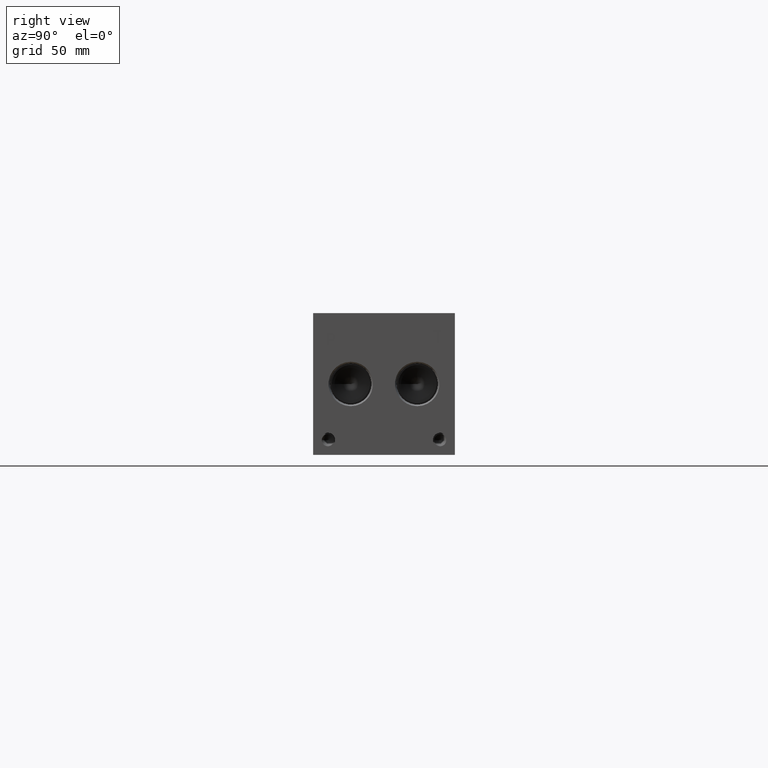
[diagram: clean part render]
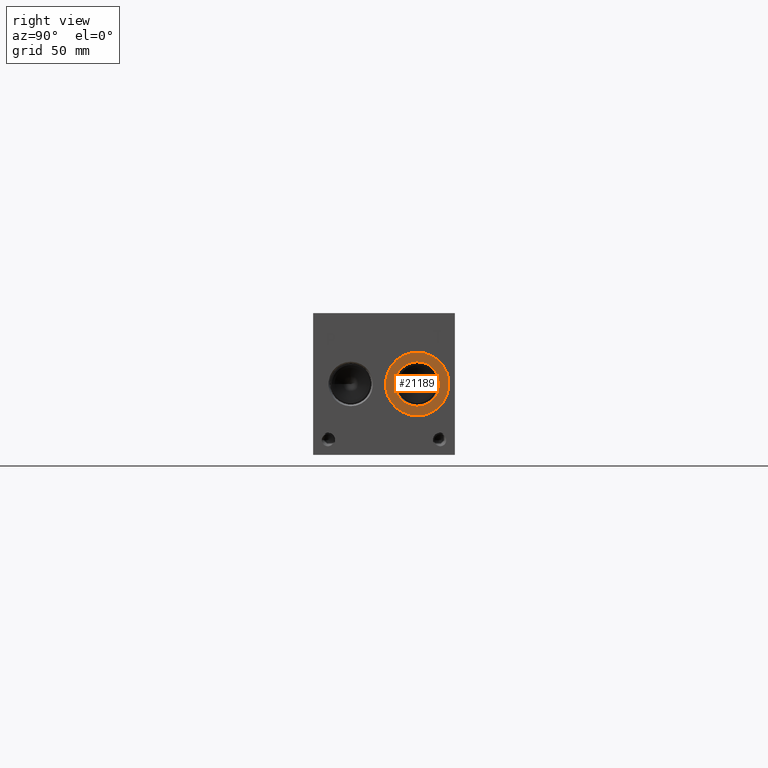
[diagram: same view with one face highlighted and labeled with its STEP entity id]
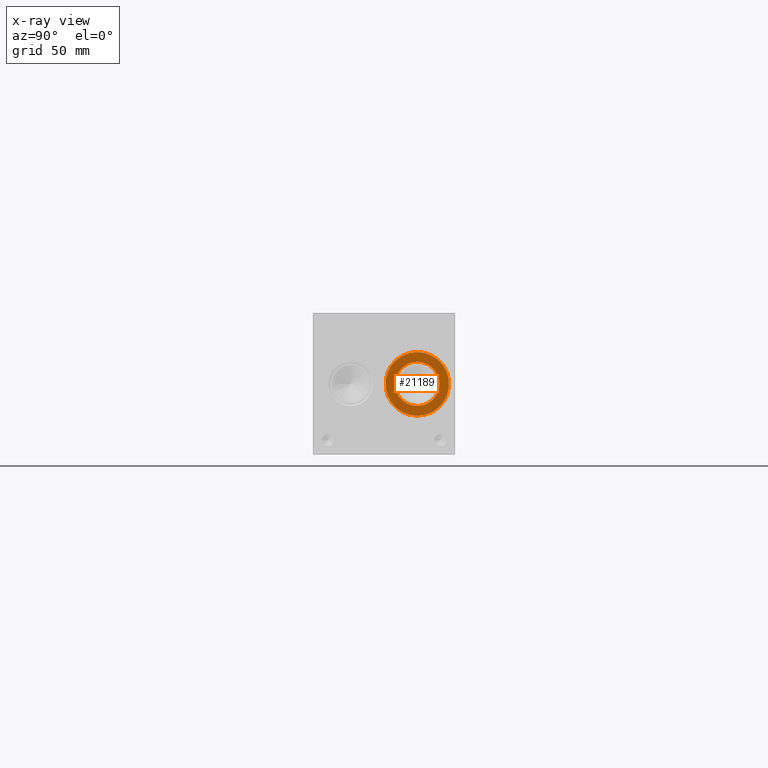
[diagram: x-ray of the same camera — body ghosted, the highlighted face saturated]
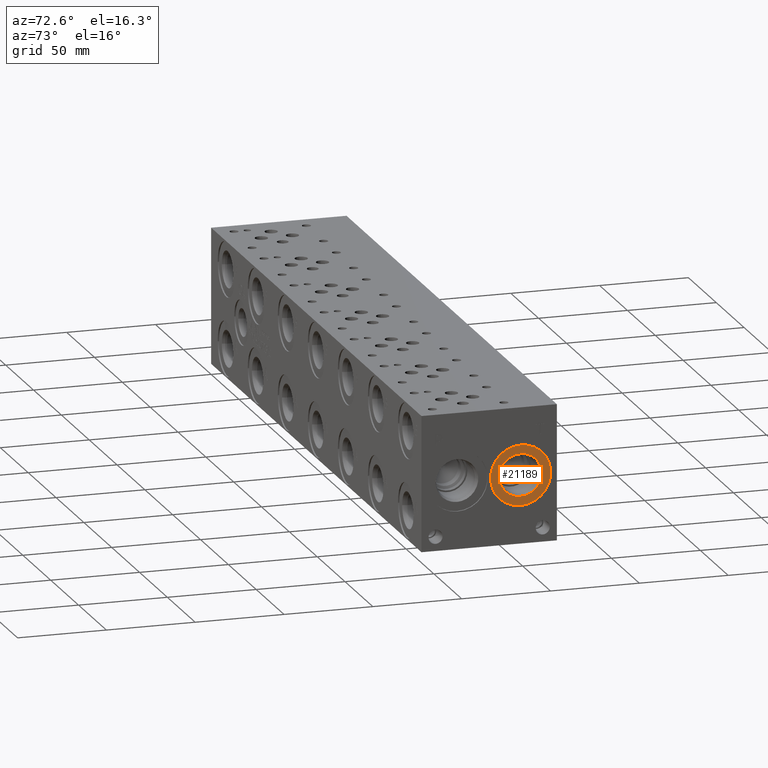
[diagram: same view with one face highlighted and labeled with its STEP entity id]
A machine part, right view. The second image highlights one B-rep face of the part: STEP entity #21189.
The next image is the same camera in x-ray: the body ghosted, the highlighted face saturated — about 0% of this face is hidden behind the body in this view.
A second angle (auxiliary view) of the same face is appended — the face is thin or edge-on in the first view.
In plain terms, the highlighted planar face has unit normal (-1, 0, 0).
Its self-contained STEP definition (entity closure, byte-faithful):
#737=CIRCLE('',#22460,17.0688);
#738=CIRCLE('',#22461,17.0688);
#739=CIRCLE('',#22463,11.9507);
#740=CIRCLE('',#22464,11.9507);
#1250=FACE_BOUND('',#4041,.T.);
#1842=PLANE('',#22462);
#2787=FACE_OUTER_BOUND('',#4040,.T.);
#4040=EDGE_LOOP('',(#18236,#18237));
#4041=EDGE_LOOP('',(#18238,#18239));
#9984=VERTEX_POINT('',#36161);
#9985=VERTEX_POINT('',#36163);
#9986=VERTEX_POINT('',#36167);
#9987=VERTEX_POINT('',#36168);
#12856=EDGE_CURVE('',#9984,#9985,#737,.T.);
#12857=EDGE_CURVE('',#9985,#9984,#738,.T.);
#12858=EDGE_CURVE('',#9986,#9987,#739,.T.);
#12859=EDGE_CURVE('',#9987,#9986,#740,.T.);
#18236=ORIENTED_EDGE('',*,*,#12857,.F.);
#18237=ORIENTED_EDGE('',*,*,#12856,.F.);
#18238=ORIENTED_EDGE('',*,*,#12858,.T.);
#18239=ORIENTED_EDGE('',*,*,#12859,.T.);
#21189=ADVANCED_FACE('',(#2787,#1250),#1842,.F.);
#22460=AXIS2_PLACEMENT_3D('',#36164,#26718,#26719);
#22461=AXIS2_PLACEMENT_3D('',#36165,#26720,#26721);
#22462=AXIS2_PLACEMENT_3D('',#36166,#26722,#26723);
#22463=AXIS2_PLACEMENT_3D('',#36169,#26724,#26725);
#22464=AXIS2_PLACEMENT_3D('',#36170,#26726,#26727);
#26718=DIRECTION('center_axis',(-1.,0.,0.));
#26719=DIRECTION('ref_axis',(0.,0.,1.));
#26720=DIRECTION('center_axis',(-1.,0.,0.));
#26721=DIRECTION('ref_axis',(0.,0.,1.));
#26722=DIRECTION('center_axis',(-1.,0.,0.));
#26723=DIRECTION('ref_axis',(0.,0.,1.));
#26724=DIRECTION('center_axis',(-1.,0.,0.));
#26725=DIRECTION('ref_axis',(0.,0.,1.));
#26726=DIRECTION('center_axis',(-1.,0.,0.));
#26727=DIRECTION('ref_axis',(0.,0.,1.));
#36161=CARTESIAN_POINT('',(377.0376,55.9562,55.1688));
#36163=CARTESIAN_POINT('',(377.0376,55.9562,21.0312));
#36164=CARTESIAN_POINT('Origin',(377.0376,55.9562,38.1));
#36165=CARTESIAN_POINT('Origin',(377.0376,55.9562,38.1));
#36166=CARTESIAN_POINT('Origin',(377.0376,55.9562,26.1493));
#36167=CARTESIAN_POINT('',(377.0376,55.9562,26.1493));
#36168=CARTESIAN_POINT('',(377.0376,55.9562,50.0507));
#36169=CARTESIAN_POINT('Origin',(377.0376,55.9562,38.1));
#36170=CARTESIAN_POINT('Origin',(377.0376,55.9562,38.1));